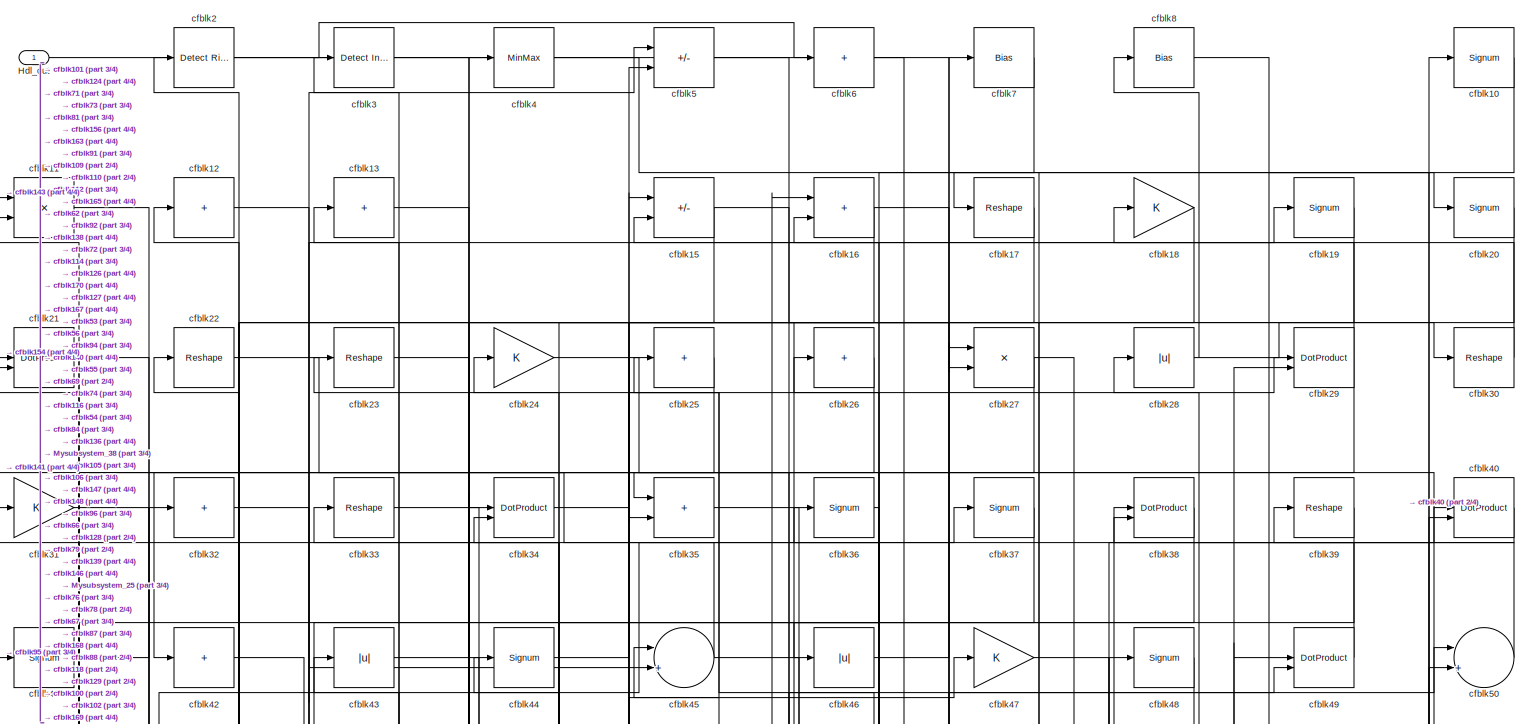
[diagram: root canvas - part 1/4, full width, top band]
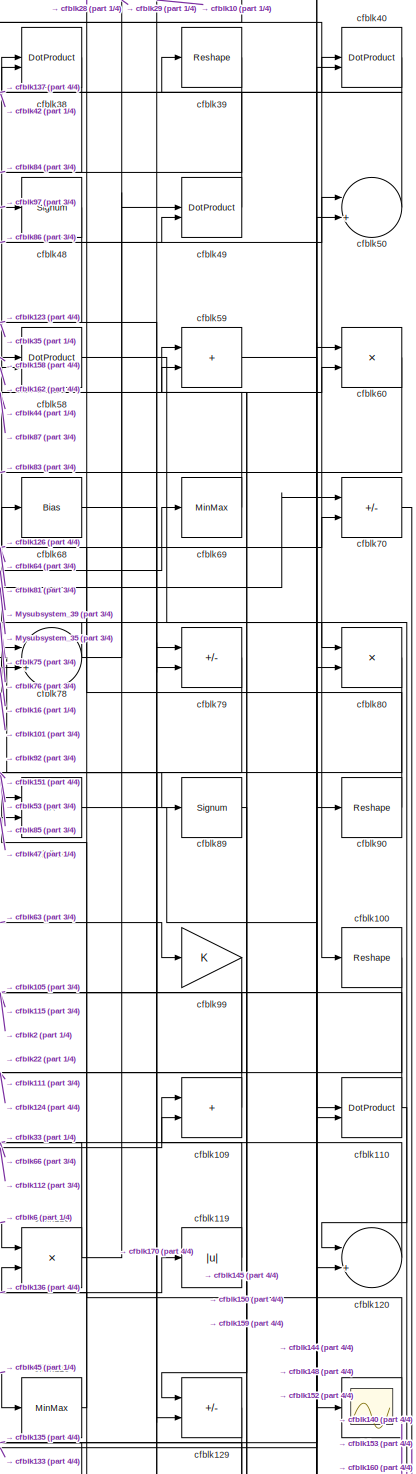
[diagram: root canvas - part 2/4, middle right region]
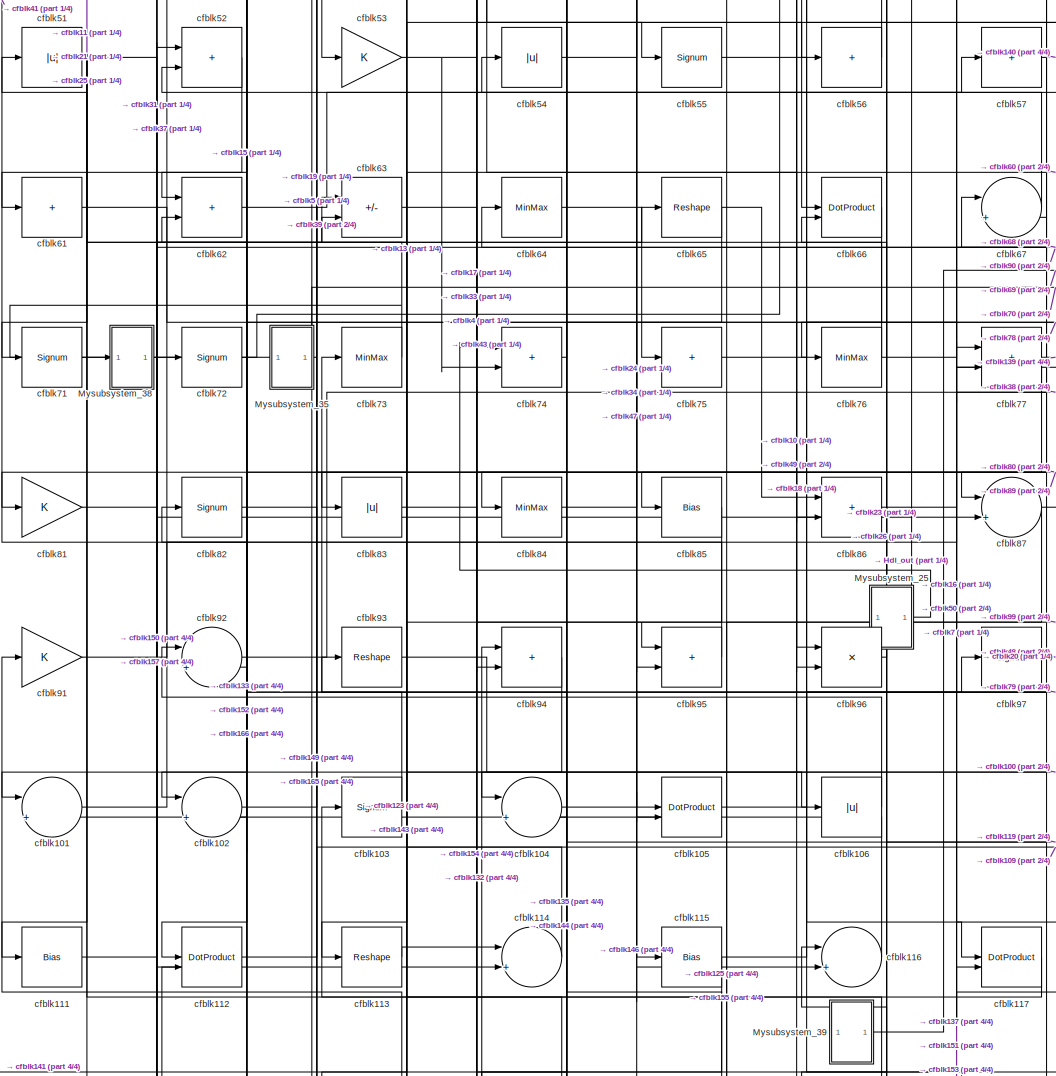
[diagram: root canvas - part 3/4, central region]
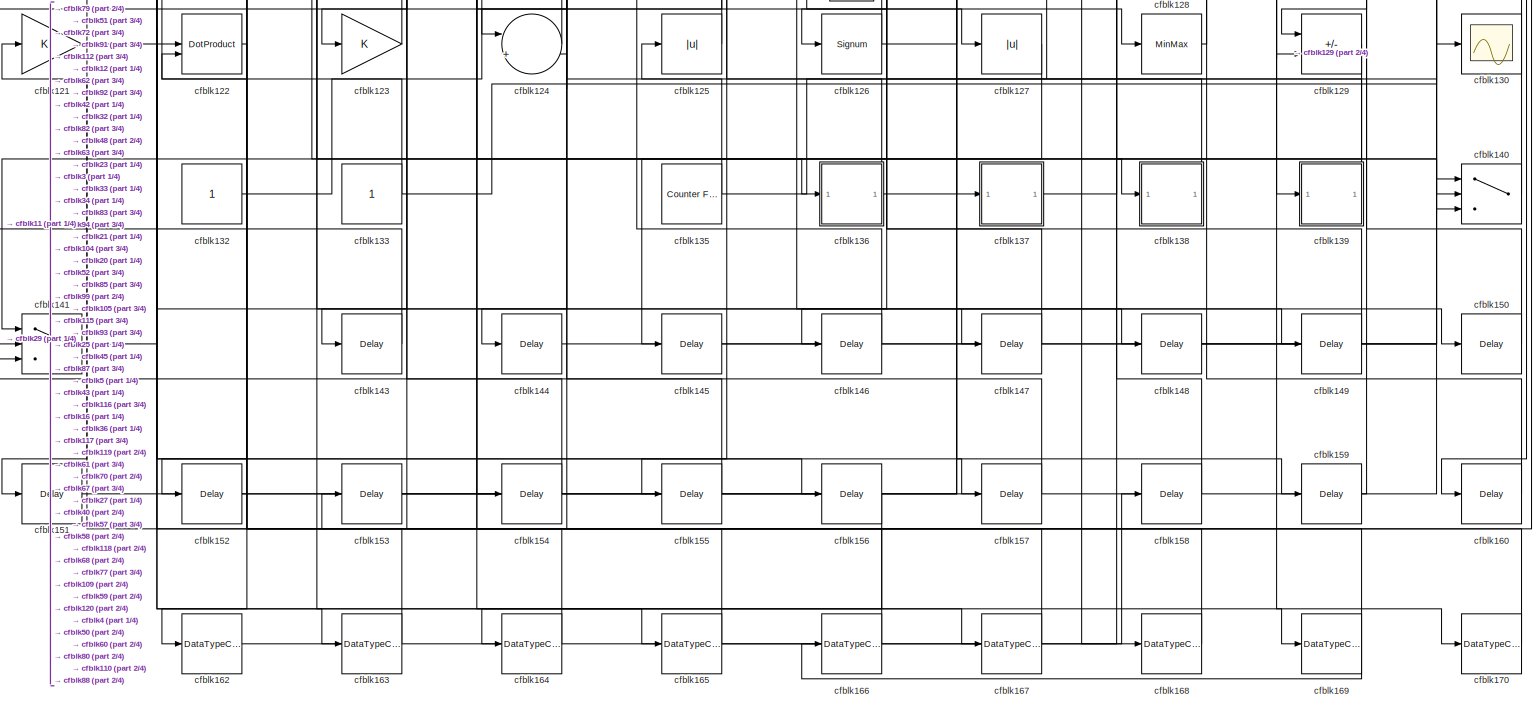
[diagram: root canvas - part 4/4, full width, bottom band]
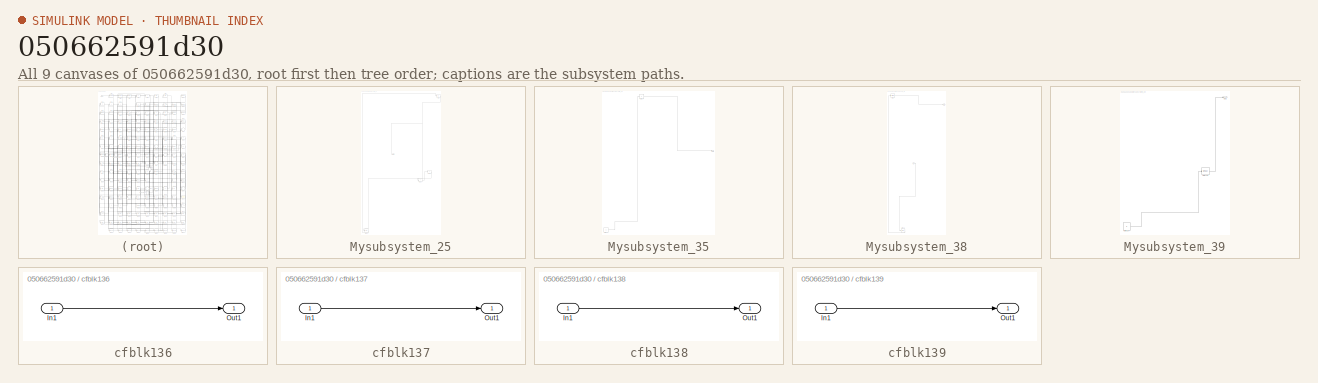
[diagram: thumbnail index - all 9 canvases of the model, root first then tree order]
MODEL slx_050662591d30
KIND model
CONFIG AbsTol = auto
CONFIG EnableMultiTasking = off
CONFIG FixedStep = auto
CONFIG MaxStep = auto
CONFIG MinStep = auto
CONFIG RelTol = 1e-3
CONFIG SampleTimeConstraint = Unconstrained
CONFIG SolverName = VariableStepAuto
CONFIG StartTime = 0.0
CONFIG StopTime = 10.0
BLOCK [Outport] Hdl_out
  OutDataTypeStr = uint8
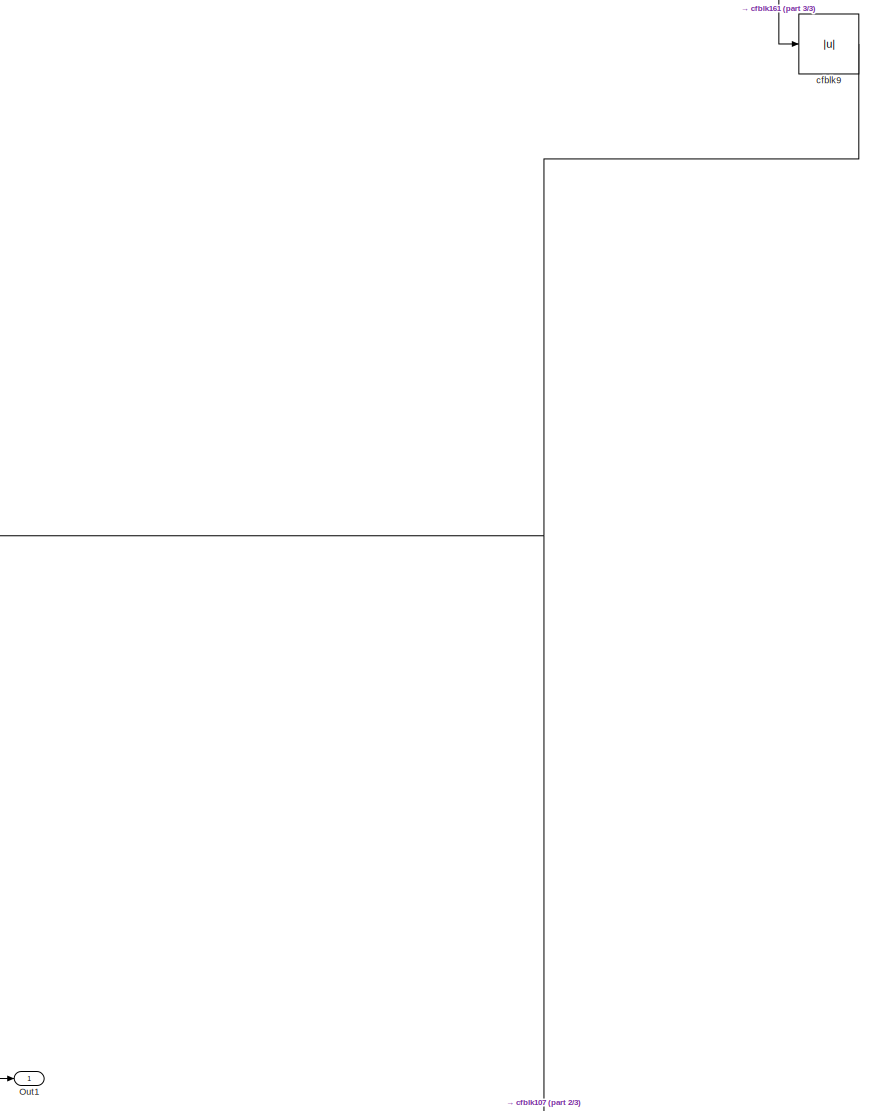
[diagram: Mysubsystem_25 - part 1/3, top right region]
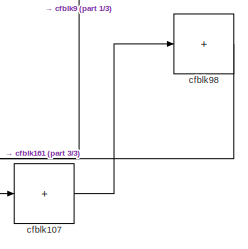
[diagram: Mysubsystem_25 - part 2/3, middle right region]
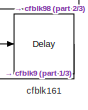
[diagram: Mysubsystem_25 - part 3/3, bottom left region]
BLOCK [SubSystem] Mysubsystem_25
  RTWFcnName = Mysubsystem_25
  RTWFcnNameOpts = User specified
  RTWFileNameOpts = Use function name
  RTWSystemCode = Reusable function
  TreatAsAtomicUnit = on
BLOCK [Outport] Mysubsystem_25/Out1
BLOCK [Sum] Mysubsystem_25/cfblk107
  IconShape = rectangular
  Inputs = +
BLOCK [Delay] Mysubsystem_25/cfblk161
  InputPortMap = u0
  SampleTime = 1
BLOCK [Abs] Mysubsystem_25/cfblk9
  SaturateOnIntegerOverflow = off
BLOCK [Sum] Mysubsystem_25/cfblk98
  IconShape = rectangular
  Inputs = +
BLOCK [SubSystem] Mysubsystem_35
  RTWFcnName = Mysubsystem_35
  RTWFcnNameOpts = User specified
  RTWFileNameOpts = Use function name
  RTWSystemCode = Reusable function
  TreatAsAtomicUnit = on
BLOCK [Outport] Mysubsystem_35/Out1
BLOCK [Constant] Mysubsystem_35/cfblk131
  SampleTime = -1
BLOCK [Sum] Mysubsystem_35/cfblk14
  IconShape = rectangular
  Inputs = +
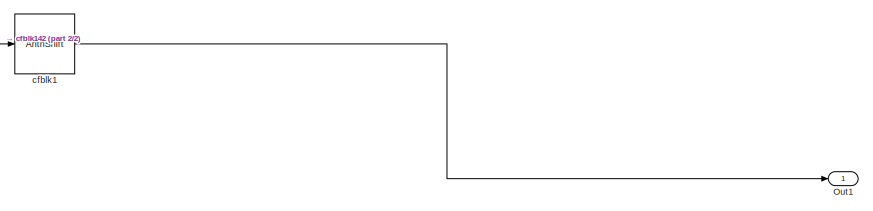
[diagram: Mysubsystem_38 - part 1/2, full width, top band]
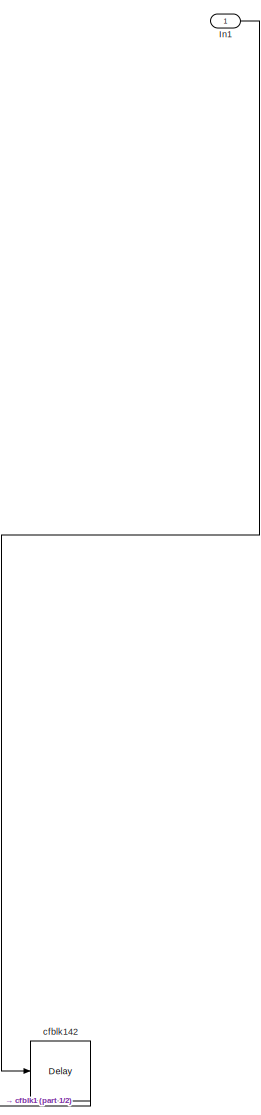
[diagram: Mysubsystem_38 - part 2/2, bottom center region]
BLOCK [SubSystem] Mysubsystem_38
  RTWFcnName = Mysubsystem_38
  RTWFcnNameOpts = User specified
  RTWFileNameOpts = Use function name
  RTWSystemCode = Reusable function
  TreatAsAtomicUnit = on
BLOCK [Inport] Mysubsystem_38/In1
BLOCK [Outport] Mysubsystem_38/Out1
BLOCK [ArithShift] Mysubsystem_38/cfblk1
  BitShiftNumber = 8
  InputPortMap = u0
BLOCK [Delay] Mysubsystem_38/cfblk142
  InputPortMap = u0
  SampleTime = 1
BLOCK [SubSystem] Mysubsystem_39
  RTWFcnName = Mysubsystem_39
  RTWFcnNameOpts = User specified
  RTWFileNameOpts = Use function name
  RTWSystemCode = Reusable function
  TreatAsAtomicUnit = on
BLOCK [Outport] Mysubsystem_39/Out1
BLOCK [MinMax] Mysubsystem_39/cfblk108
BLOCK [Constant] Mysubsystem_39/cfblk134
  SampleTime = -1
BLOCK [Signum] cfblk10
BLOCK [Reshape] cfblk100
BLOCK [Sum] cfblk101
  Inputs = |++
  OutDataTypeStr = uint8
BLOCK [Sum] cfblk102
  Inputs = |++
  OutDataTypeStr = uint8
BLOCK [Signum] cfblk103
BLOCK [Sum] cfblk104
  Inputs = |++
  OutDataTypeStr = uint8
BLOCK [DotProduct] cfblk105
  OutDataTypeStr = uint8
BLOCK [Abs] cfblk106
  OutDataTypeStr = uint8
  SaturateOnIntegerOverflow = off
BLOCK [Sum] cfblk109
  IconShape = rectangular
  OutDataTypeStr = uint8
BLOCK [Product] cfblk11
  Inputs = */
  OutDataTypeStr = uint8
  RndMeth = Zero
  SaturateOnIntegerOverflow = on
BLOCK [DotProduct] cfblk110
  OutDataTypeStr = uint8
BLOCK [Bias] cfblk111
  Bias = 0.0
  SaturateOnIntegerOverflow = off
BLOCK [DotProduct] cfblk112
  OutDataTypeStr = uint8
BLOCK [Reshape] cfblk113
BLOCK [Sum] cfblk114
  Inputs = |++
  OutDataTypeStr = uint8
BLOCK [Bias] cfblk115
  Bias = 0.0
  SaturateOnIntegerOverflow = off
BLOCK [Sum] cfblk116
  Inputs = |++
  OutDataTypeStr = uint8
BLOCK [DotProduct] cfblk117
  OutDataTypeStr = uint8
BLOCK [Product] cfblk118
  Inputs = */
  OutDataTypeStr = uint8
  RndMeth = Zero
  SaturateOnIntegerOverflow = on
BLOCK [Abs] cfblk119
  OutDataTypeStr = uint8
  SaturateOnIntegerOverflow = off
BLOCK [Sum] cfblk12
  IconShape = rectangular
  Inputs = +
  OutDataTypeStr = uint8
BLOCK [Sum] cfblk120
  Inputs = |++
  OutDataTypeStr = uint8
BLOCK [Gain] cfblk121
  OutDataTypeStr = uint8
BLOCK [DotProduct] cfblk122
  OutDataTypeStr = uint8
BLOCK [Gain] cfblk123
  OutDataTypeStr = uint8
BLOCK [Sum] cfblk124
  Inputs = |++
  OutDataTypeStr = uint8
BLOCK [Abs] cfblk125
  OutDataTypeStr = uint8
  SaturateOnIntegerOverflow = off
BLOCK [Signum] cfblk126
BLOCK [Abs] cfblk127
  OutDataTypeStr = uint8
  SaturateOnIntegerOverflow = off
BLOCK [MinMax] cfblk128
  OutDataTypeStr = uint8
BLOCK [Sum] cfblk129
  IconShape = rectangular
  Inputs = +-
  OutDataTypeStr = uint8
BLOCK [Sum] cfblk13
  IconShape = rectangular
  Inputs = +
  OutDataTypeStr = uint8
BLOCK [Scope] cfblk130
  Floating = off
  NumInputPorts = 1
  ScopeSpecificationString = Simulink.scopes.TimeScopeBlockCfg('CurrentConfiguration', extmgr.ConfigurationSet(extmgr.Configuration('Core','General UI',true),extmgr.Configuration('Core','Source UI',true),extmgr.Configuration('Sources','WiredSimulink',true,'DataLoggingVariableName','ScopeData2','DataLoggingSaveFormat','Array','DataLoggingLimitDataPoints',true,'DataLoggingDecimation','1'),extmgr.Configuration('Visuals','Time Do...<+868ch>
BLOCK [Constant] cfblk132
  OutDataTypeStr = uint8
  SampleTime = -1
BLOCK [Constant] cfblk133
  OutDataTypeStr = uint8
  SampleTime = -1
BLOCK [Reference] cfblk135  REF=hdlsllib/Sources/Counter
Free-Running
  SourceBlock = hdlsllib/Sources/Counter\nFree-Running
  SourceType = Counter Free-Running
BLOCK [SubSystem] cfblk136
  LibrarySourceBlock = hdlsllib/Ports &\nSubsystems/Subsystem
BLOCK [Inport] cfblk136/In1
BLOCK [Outport] cfblk136/Out1
BLOCK [SubSystem] cfblk137
  LibrarySourceBlock = hdlsllib/Ports &\nSubsystems/Subsystem
BLOCK [Inport] cfblk137/In1
BLOCK [Outport] cfblk137/Out1
BLOCK [SubSystem] cfblk138
  LibrarySourceBlock = hdlsllib/Ports &\nSubsystems/Subsystem
BLOCK [Inport] cfblk138/In1
BLOCK [Outport] cfblk138/Out1
BLOCK [SubSystem] cfblk139
  LibrarySourceBlock = hdlsllib/Ports &\nSubsystems/Subsystem
BLOCK [Inport] cfblk139/In1
BLOCK [Outport] cfblk139/Out1
BLOCK [Switch] cfblk140
  InputSameDT = off
  OutDataTypeStr = uint8
  SaturateOnIntegerOverflow = off
BLOCK [Switch] cfblk141
  InputSameDT = off
  OutDataTypeStr = uint8
  SaturateOnIntegerOverflow = off
BLOCK [Delay] cfblk143
  InputPortMap = u0
  SampleTime = 1
BLOCK [Delay] cfblk144
  InputPortMap = u0
  SampleTime = 1
BLOCK [Delay] cfblk145
  InputPortMap = u0
  SampleTime = 1
BLOCK [Delay] cfblk146
  InputPortMap = u0
  SampleTime = 1
BLOCK [Delay] cfblk147
  InputPortMap = u0
  SampleTime = 1
BLOCK [Delay] cfblk148
  InputPortMap = u0
  SampleTime = 1
BLOCK [Delay] cfblk149
  InputPortMap = u0
  SampleTime = 1
BLOCK [Sum] cfblk15
  IconShape = rectangular
  Inputs = +-
  OutDataTypeStr = uint8
BLOCK [Delay] cfblk150
  InputPortMap = u0
  SampleTime = 1
BLOCK [Delay] cfblk151
  InputPortMap = u0
  SampleTime = 1
BLOCK [Delay] cfblk152
  InputPortMap = u0
  SampleTime = 1
BLOCK [Delay] cfblk153
  InputPortMap = u0
  SampleTime = 1
BLOCK [Delay] cfblk154
  InputPortMap = u0
  SampleTime = 1
BLOCK [Delay] cfblk155
  InputPortMap = u0
  SampleTime = 1
BLOCK [Delay] cfblk156
  InputPortMap = u0
  SampleTime = 1
BLOCK [Delay] cfblk157
  InputPortMap = u0
  SampleTime = 1
BLOCK [Delay] cfblk158
  InputPortMap = u0
  SampleTime = 1
BLOCK [Delay] cfblk159
  InputPortMap = u0
  SampleTime = 1
BLOCK [Sum] cfblk16
  IconShape = rectangular
  OutDataTypeStr = uint8
BLOCK [Delay] cfblk160
  InputPortMap = u0
  SampleTime = 1
BLOCK [DataTypeConversion] cfblk162
  OutDataTypeStr = uint8
  RndMeth = Floor
  SaturateOnIntegerOverflow = off
BLOCK [DataTypeConversion] cfblk163
  OutDataTypeStr = uint8
  RndMeth = Floor
  SaturateOnIntegerOverflow = off
BLOCK [DataTypeConversion] cfblk164
  OutDataTypeStr = uint8
  RndMeth = Floor
  SaturateOnIntegerOverflow = off
BLOCK [DataTypeConversion] cfblk165
  OutDataTypeStr = uint8
  RndMeth = Floor
  SaturateOnIntegerOverflow = off
BLOCK [DataTypeConversion] cfblk166
  OutDataTypeStr = uint8
  RndMeth = Floor
  SaturateOnIntegerOverflow = off
BLOCK [DataTypeConversion] cfblk167
  OutDataTypeStr = uint8
  RndMeth = Floor
  SaturateOnIntegerOverflow = off
BLOCK [DataTypeConversion] cfblk168
  OutDataTypeStr = uint8
  RndMeth = Floor
  SaturateOnIntegerOverflow = off
BLOCK [DataTypeConversion] cfblk169
  OutDataTypeStr = uint8
  RndMeth = Floor
  SaturateOnIntegerOverflow = off
BLOCK [Reshape] cfblk17
BLOCK [DataTypeConversion] cfblk170
  OutDataTypeStr = uint8
  RndMeth = Floor
  SaturateOnIntegerOverflow = off
BLOCK [Gain] cfblk18
  OutDataTypeStr = uint8
BLOCK [Signum] cfblk19
BLOCK [Reference] cfblk2  REF=hdlsllib/Logic and Bit
Operations/Detect Rise
Nonnegative
  SourceBlock = hdlsllib/Logic and Bit\nOperations/Detect Rise\nNonnegative
  SourceType = Detect Rise Nonnegative
BLOCK [Signum] cfblk20
BLOCK [DotProduct] cfblk21
  OutDataTypeStr = uint8
BLOCK [Reshape] cfblk22
BLOCK [Reshape] cfblk23
BLOCK [Gain] cfblk24
  OutDataTypeStr = uint8
BLOCK [Sum] cfblk25
  IconShape = rectangular
  Inputs = +
  OutDataTypeStr = uint8
BLOCK [Sum] cfblk26
  IconShape = rectangular
  Inputs = +
  OutDataTypeStr = uint8
BLOCK [Product] cfblk27
  Inputs = */
  OutDataTypeStr = uint8
  RndMeth = Zero
  SaturateOnIntegerOverflow = on
BLOCK [Abs] cfblk28
  OutDataTypeStr = uint8
  SaturateOnIntegerOverflow = off
BLOCK [DotProduct] cfblk29
  OutDataTypeStr = uint8
BLOCK [Reference] cfblk3  REF=simulink/Logic and Bit
Operations/Detect
Increase
  LibrarySourceBlock = hdlsllib/Logic and Bit\nOperations/Detect\nIncrease
  SourceBlock = simulink/Logic and Bit\nOperations/Detect\nIncrease
  SourceType = Detect Increase
BLOCK [Reshape] cfblk30
BLOCK [Gain] cfblk31
  OutDataTypeStr = uint8
BLOCK [Sum] cfblk32
  IconShape = rectangular
  Inputs = +
  OutDataTypeStr = uint8
BLOCK [Reshape] cfblk33
BLOCK [DotProduct] cfblk34
  OutDataTypeStr = uint8
BLOCK [Sum] cfblk35
  IconShape = rectangular
  OutDataTypeStr = uint8
BLOCK [Signum] cfblk36
BLOCK [Signum] cfblk37
BLOCK [DotProduct] cfblk38
  OutDataTypeStr = uint8
BLOCK [Reshape] cfblk39
BLOCK [MinMax] cfblk4
  OutDataTypeStr = uint8
BLOCK [DotProduct] cfblk40
  OutDataTypeStr = uint8
BLOCK [Signum] cfblk41
BLOCK [Sum] cfblk42
  IconShape = rectangular
  Inputs = +
  OutDataTypeStr = uint8
BLOCK [Abs] cfblk43
  OutDataTypeStr = uint8
  SaturateOnIntegerOverflow = off
BLOCK [Signum] cfblk44
BLOCK [Sum] cfblk45
  Inputs = |++
  OutDataTypeStr = uint8
BLOCK [Abs] cfblk46
  OutDataTypeStr = uint8
  SaturateOnIntegerOverflow = off
BLOCK [Gain] cfblk47
  OutDataTypeStr = uint8
BLOCK [Signum] cfblk48
BLOCK [DotProduct] cfblk49
  OutDataTypeStr = uint8
BLOCK [Sum] cfblk5
  IconShape = rectangular
  Inputs = +-
  OutDataTypeStr = uint8
BLOCK [Sum] cfblk50
  Inputs = |++
  OutDataTypeStr = uint8
BLOCK [Abs] cfblk51
  OutDataTypeStr = uint8
  SaturateOnIntegerOverflow = off
BLOCK [Sum] cfblk52
  IconShape = rectangular
  OutDataTypeStr = uint8
BLOCK [Gain] cfblk53
  OutDataTypeStr = uint8
BLOCK [Abs] cfblk54
  OutDataTypeStr = uint8
  SaturateOnIntegerOverflow = off
BLOCK [Signum] cfblk55
BLOCK [Sum] cfblk56
  IconShape = rectangular
  Inputs = +
  OutDataTypeStr = uint8
BLOCK [Sum] cfblk57
  IconShape = rectangular
  Inputs = +
  OutDataTypeStr = uint8
BLOCK [DotProduct] cfblk58
  OutDataTypeStr = uint8
BLOCK [Sum] cfblk59
  IconShape = rectangular
  OutDataTypeStr = uint8
BLOCK [Sum] cfblk6
  IconShape = rectangular
  Inputs = +
  OutDataTypeStr = uint8
BLOCK [Product] cfblk60
  Inputs = */
  OutDataTypeStr = uint8
  RndMeth = Zero
  SaturateOnIntegerOverflow = on
BLOCK [Sum] cfblk61
  IconShape = rectangular
  Inputs = +
  OutDataTypeStr = uint8
BLOCK [Sum] cfblk62
  IconShape = rectangular
  OutDataTypeStr = uint8
BLOCK [Sum] cfblk63
  IconShape = rectangular
  Inputs = +-
  OutDataTypeStr = uint8
BLOCK [MinMax] cfblk64
  OutDataTypeStr = uint8
BLOCK [Reshape] cfblk65
BLOCK [DotProduct] cfblk66
  OutDataTypeStr = uint8
BLOCK [Sum] cfblk67
  Inputs = |++
  OutDataTypeStr = uint8
BLOCK [Bias] cfblk68
  Bias = 0.0
  SaturateOnIntegerOverflow = off
BLOCK [MinMax] cfblk69
  OutDataTypeStr = uint8
BLOCK [Bias] cfblk7
  Bias = 0.0
  SaturateOnIntegerOverflow = off
BLOCK [Sum] cfblk70
  IconShape = rectangular
  Inputs = +-
  OutDataTypeStr = uint8
BLOCK [Signum] cfblk71
BLOCK [Signum] cfblk72
BLOCK [MinMax] cfblk73
  OutDataTypeStr = uint8
BLOCK [Sum] cfblk74
  IconShape = rectangular
  OutDataTypeStr = uint8
BLOCK [Sum] cfblk75
  IconShape = rectangular
  Inputs = +
  OutDataTypeStr = uint8
BLOCK [MinMax] cfblk76
  OutDataTypeStr = uint8
BLOCK [Sum] cfblk77
  IconShape = rectangular
  OutDataTypeStr = uint8
BLOCK [Sum] cfblk78
  Inputs = |++
  OutDataTypeStr = uint8
BLOCK [Sum] cfblk79
  IconShape = rectangular
  Inputs = +-
  OutDataTypeStr = uint8
BLOCK [Bias] cfblk8
  Bias = 0.0
  SaturateOnIntegerOverflow = off
BLOCK [Product] cfblk80
  Inputs = */
  OutDataTypeStr = uint8
  RndMeth = Zero
  SaturateOnIntegerOverflow = on
BLOCK [Gain] cfblk81
  OutDataTypeStr = uint8
BLOCK [Signum] cfblk82
BLOCK [Abs] cfblk83
  OutDataTypeStr = uint8
  SaturateOnIntegerOverflow = off
BLOCK [MinMax] cfblk84
  OutDataTypeStr = uint8
BLOCK [Bias] cfblk85
  Bias = 0.0
  SaturateOnIntegerOverflow = off
BLOCK [Sum] cfblk86
  IconShape = rectangular
  OutDataTypeStr = uint8
BLOCK [Sum] cfblk87
  Inputs = |++
  OutDataTypeStr = uint8
BLOCK [Product] cfblk88
  Inputs = */
  OutDataTypeStr = uint8
  RndMeth = Zero
  SaturateOnIntegerOverflow = on
BLOCK [Signum] cfblk89
BLOCK [Reshape] cfblk90
BLOCK [Gain] cfblk91
  OutDataTypeStr = uint8
BLOCK [Sum] cfblk92
  Inputs = |++
  OutDataTypeStr = uint8
BLOCK [Reshape] cfblk93
BLOCK [Sum] cfblk94
  IconShape = rectangular
  OutDataTypeStr = uint8
BLOCK [Sum] cfblk95
  IconShape = rectangular
  OutDataTypeStr = uint8
BLOCK [Product] cfblk96
  Inputs = */
  OutDataTypeStr = uint8
  RndMeth = Zero
  SaturateOnIntegerOverflow = on
BLOCK [Signum] cfblk97
BLOCK [Gain] cfblk99
  OutDataTypeStr = uint8
LINE Mysubsystem_25/cfblk107:1 -> Mysubsystem_25/cfblk98:1
LINE Mysubsystem_25/cfblk161:1 -> Mysubsystem_25/cfblk9:1
LINE Mysubsystem_25/cfblk98:1 -> Mysubsystem_25/cfblk161:1
NET Mysubsystem_25/cfblk9:1 -> Mysubsystem_25/Out1:1, Mysubsystem_25/cfblk107:1
NET Mysubsystem_25:1 -> Hdl_out:1, cfblk74:1
LINE Mysubsystem_35/cfblk131:1 -> Mysubsystem_35/cfblk14:1
LINE Mysubsystem_35/cfblk14:1 -> Mysubsystem_35/Out1:1
LINE Mysubsystem_35:1 -> cfblk70:1
LINE Mysubsystem_38/In1:1 -> Mysubsystem_38/cfblk142:1
LINE Mysubsystem_38/cfblk142:1 -> Mysubsystem_38/cfblk1:1
LINE Mysubsystem_38/cfblk1:1 -> Mysubsystem_38/Out1:1
LINE Mysubsystem_38:1 -> cfblk16:1
LINE Mysubsystem_39/cfblk108:1 -> Mysubsystem_39/Out1:1
LINE Mysubsystem_39/cfblk134:1 -> Mysubsystem_39/cfblk108:1
LINE Mysubsystem_39:1 -> cfblk69:1
LINE cfblk100:1 -> cfblk111:1
LINE cfblk101:1 -> cfblk78:1
LINE cfblk102:1 -> cfblk19:1
LINE cfblk103:1 -> cfblk73:1
LINE cfblk104:1 -> cfblk97:1
NET cfblk105:1 -> cfblk10:1, cfblk49:2
LINE cfblk106:1 -> cfblk92:1
LINE cfblk109:1 -> cfblk2:1
NET cfblk10:1 -> cfblk129:2, cfblk46:1, cfblk67:2
NET cfblk110:1 -> cfblk160:1, cfblk22:1
NET cfblk111:1 -> cfblk52:1, cfblk63:1
LINE cfblk112:1 -> cfblk109:1
LINE cfblk113:1 -> cfblk114:1
LINE cfblk114:1 -> cfblk13:1
NET cfblk115:1 -> cfblk141:3, cfblk77:2, cfblk79:1
LINE cfblk116:1 -> cfblk101:2
LINE cfblk117:1 -> cfblk103:1
NET cfblk118:1 -> cfblk33:1, cfblk49:1
LINE cfblk119:1 -> cfblk66:2
LINE cfblk11:1 -> cfblk163:1
LINE cfblk120:1 -> cfblk59:1
LINE cfblk121:1 -> cfblk167:1
LINE cfblk122:1 -> cfblk162:1
LINE cfblk123:1 -> cfblk91:1
LINE cfblk124:1 -> cfblk21:2
LINE cfblk125:1 -> cfblk93:1
NET cfblk126:1 -> cfblk43:1, cfblk70:2
LINE cfblk127:1 -> cfblk141:1
LINE cfblk128:1 -> cfblk28:1
LINE cfblk129:1 -> cfblk145:1
LINE cfblk12:1 -> cfblk45:2
LINE cfblk132:1 -> cfblk94:1
NET cfblk133:1 -> cfblk112:2, cfblk50:2, cfblk62:2
NET cfblk135:1 -> cfblk52:2, cfblk60:1
LINE cfblk136/In1:1 -> cfblk136/Out1:1
NET cfblk136:1 -> cfblk119:1, cfblk159:1, cfblk25:1, cfblk45:1
LINE cfblk137/In1:1 -> cfblk137/Out1:1
LINE cfblk137:1 -> cfblk40:1
LINE cfblk138/In1:1 -> cfblk138/Out1:1
LINE cfblk138:1 -> cfblk125:1
LINE cfblk139/In1:1 -> cfblk139/Out1:1
NET cfblk139:1 -> cfblk36:1, cfblk67:1
LINE cfblk13:1 -> cfblk56:1
LINE cfblk140:1 -> cfblk88:1
LINE cfblk141:1 -> cfblk72:1
LINE cfblk143:1 -> cfblk11:1
LINE cfblk144:1 -> cfblk120:2
LINE cfblk145:1 -> cfblk80:2
LINE cfblk146:1 -> cfblk105:1
LINE cfblk147:1 -> cfblk16:2
LINE cfblk148:1 -> cfblk40:2
LINE cfblk149:1 -> cfblk116:1
LINE cfblk150:1 -> cfblk59:2
LINE cfblk151:1 -> cfblk117:2
LINE cfblk152:1 -> cfblk110:1
LINE cfblk153:1 -> cfblk77:1
LINE cfblk154:1 -> cfblk21:1
LINE cfblk155:1 -> cfblk63:2
LINE cfblk156:1 -> cfblk164:1
LINE cfblk157:1 -> cfblk104:2
LINE cfblk158:1 -> cfblk58:1
LINE cfblk159:1 -> cfblk109:2
NET cfblk15:1 -> cfblk27:2, cfblk92:2
LINE cfblk160:1 -> cfblk118:2
LINE cfblk162:1 -> cfblk58:2
LINE cfblk163:1 -> cfblk122:1
LINE cfblk164:1 -> cfblk122:2
NET cfblk165:1 -> cfblk12:1, cfblk158:1
LINE cfblk166:1 -> cfblk82:1
LINE cfblk167:1 -> cfblk34:1
LINE cfblk168:1 -> cfblk121:1
NET cfblk169:1 -> cfblk166:1, cfblk34:2
NET cfblk16:1 -> cfblk112:1, cfblk78:2, cfblk95:2
LINE cfblk170:1 -> cfblk3:1
LINE cfblk17:1 -> cfblk94:2
NET cfblk18:1 -> cfblk62:1, cfblk66:1
LINE cfblk19:1 -> cfblk35:2
NET cfblk20:1 -> cfblk124:2, cfblk87:1
NET cfblk21:1 -> cfblk156:1, cfblk71:1
LINE cfblk22:1 -> cfblk100:1
LINE cfblk23:1 -> cfblk127:1
NET cfblk24:1 -> cfblk106:1, cfblk96:1
LINE cfblk25:1 -> cfblk81:1
LINE cfblk26:1 -> cfblk35:1
NET cfblk27:1 -> cfblk146:1, cfblk168:1
NET cfblk28:1 -> cfblk30:1, cfblk8:1
NET cfblk29:1 -> cfblk141:2, cfblk18:1
LINE cfblk2:1 -> cfblk6:1
LINE cfblk30:1 -> cfblk15:2
LINE cfblk31:1 -> cfblk114:2
LINE cfblk32:1 -> cfblk136:1
NET cfblk33:1 -> cfblk140:3, cfblk55:1
NET cfblk34:1 -> cfblk116:2, cfblk5:2
LINE cfblk35:1 -> cfblk79:2
LINE cfblk36:1 -> cfblk126:1
LINE cfblk37:1 -> cfblk101:1
LINE cfblk38:1 -> cfblk84:1
LINE cfblk39:1 -> cfblk53:1
LINE cfblk3:1 -> cfblk169:1
LINE cfblk40:1 -> cfblk42:1
LINE cfblk41:1 -> cfblk32:1
LINE cfblk42:1 -> cfblk138:1
LINE cfblk43:1 -> cfblk96:2
LINE cfblk44:1 -> cfblk29:1
NET cfblk45:1 -> cfblk128:1, cfblk31:1
LINE cfblk46:1 -> cfblk27:1
LINE cfblk47:1 -> cfblk88:2
LINE cfblk48:1 -> cfblk123:1
LINE cfblk49:1 -> cfblk38:2
LINE cfblk4:1 -> cfblk140:1
LINE cfblk50:1 -> cfblk39:1
LINE cfblk51:1 -> cfblk150:1
LINE cfblk52:1 -> cfblk61:1
NET cfblk53:1 -> cfblk4:1, cfblk74:2, cfblk89:1
LINE cfblk54:1 -> cfblk15:1
LINE cfblk55:1 -> cfblk117:1
LINE cfblk56:1 -> cfblk23:1
LINE cfblk57:1 -> cfblk140:2
LINE cfblk58:1 -> cfblk120:1
LINE cfblk59:1 -> cfblk90:1
NET cfblk5:1 -> cfblk147:1, cfblk148:1
LINE cfblk60:1 -> cfblk83:1
NET cfblk61:1 -> cfblk115:1, cfblk137:1
NET cfblk62:1 -> cfblk57:1, cfblk86:2
NET cfblk63:1 -> cfblk95:1, cfblk99:1
LINE cfblk64:1 -> cfblk75:1
NET cfblk65:1 -> cfblk104:1, cfblk86:1
LINE cfblk66:1 -> cfblk102:1
LINE cfblk67:1 -> cfblk54:1
LINE cfblk68:1 -> cfblk170:1
LINE cfblk69:1 -> cfblk44:1
LINE cfblk6:1 -> cfblk118:1
LINE cfblk70:1 -> cfblk153:1
LINE cfblk71:1 -> cfblk87:2
NET cfblk72:1 -> cfblk149:1, cfblk5:1
NET cfblk73:1 -> Mysubsystem_38:1, cfblk11:2
LINE cfblk74:1 -> cfblk24:1
LINE cfblk75:1 -> cfblk80:1
NET cfblk76:1 -> cfblk51:1, cfblk7:1
NET cfblk77:1 -> cfblk102:2, cfblk139:1
NET cfblk78:1 -> cfblk29:2, cfblk76:1
LINE cfblk79:1 -> cfblk151:1
LINE cfblk7:1 -> cfblk17:1
NET cfblk80:1 -> cfblk110:2, cfblk85:1
NET cfblk81:1 -> cfblk65:1, cfblk68:1
LINE cfblk82:1 -> cfblk165:1
LINE cfblk83:1 -> cfblk154:1
LINE cfblk84:1 -> cfblk47:1
NET cfblk85:1 -> cfblk143:1, cfblk144:1
LINE cfblk86:1 -> cfblk50:1
NET cfblk87:1 -> cfblk155:1, cfblk60:2
LINE cfblk88:1 -> cfblk130:1
LINE cfblk89:1 -> cfblk129:1
LINE cfblk8:1 -> cfblk20:1
LINE cfblk90:1 -> cfblk64:1
NET cfblk91:1 -> cfblk157:1, cfblk37:1
NET cfblk92:1 -> cfblk152:1, cfblk38:1
LINE cfblk93:1 -> cfblk105:2
LINE cfblk94:1 -> cfblk113:1
LINE cfblk95:1 -> cfblk41:1
LINE cfblk96:1 -> cfblk26:1
LINE cfblk97:1 -> cfblk48:1
LINE cfblk99:1 -> cfblk124:1
note: NET lines group one-source signal fan-out (src -> all destinations, sorted); 1:1 wires keep LINE
